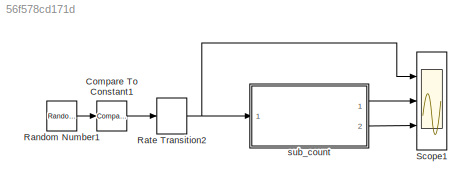
MODEL slx_56f578cd171d
KIND model
CONFIG AbsTol = auto
CONFIG FixedStep = auto
CONFIG MaxStep = auto
CONFIG MinStep = auto
CONFIG RelTol = 1e-3
CONFIG SampleTimeConstraint = Unconstrained
CONFIG Solver = ode45
CONFIG SolverMode = Auto
CONFIG SolverName = ode45
CONFIG StartTime = 0.0
CONFIG StopTime = 1000
BLOCK [Reference] Compare To Constant1  REF=simulink/Logic and Bit
Operations/Compare
To Constant
  Ports = [1, 1]
  SourceBlock = simulink/Logic and Bit\nOperations/Compare\nTo Constant
  SourceType = Compare To Constant
BLOCK [RandomNumber] Random Number1
  SampleTime = 70
BLOCK [RateTransition] Rate Transition2
  OutPortSampleTime = 1
BLOCK [Scope] Scope1
  NumInputPorts = 3
  Ports = [3]
  ScopeSpecificationString = C++SS(StrPVP('Location','[37, 79, 496, 565]'),StrPVP('Open','off'),StrPVP('ZoomMode','yonly'),MxPVP('AxesTitles',24,'struct(''axes1'',''%<SignalLabel>'',''axes2'',''%<SignalLabel>'',''axes3'',''%<SignalLabel>'')'),MxPVP('ScopeGraphics',28,'struct(''FigureColor'',''[0.501960784313725 0.501960784313725 0.501960784313725]'',''AxesColor'',''[0 0 0]'',''AxesTickColor'',''[1 1 1]'',''LineColors'',''[1 1...<+444ch>
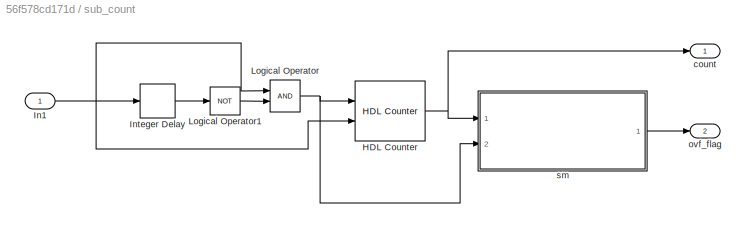
BLOCK [SubSystem] sub_count
  Ports = [1, 2]
  RequestExecContextInheritance = off
  Variant = off
BLOCK [Reference] sub_count/HDL Counter  REF=hdlsllib/HDL Operations/HDL Counter
  Ports = [2, 1]
  SourceBlock = hdlsllib/HDL Operations/HDL Counter
  SourceType = HDL Counter
BLOCK [Inport] sub_count/In1
  IconDisplay = Port number
BLOCK [Delay] sub_count/Integer Delay
  DelayLength = 1
  InputPortMap = u0
  InputProcessing = Inherited
  Ports = [1, 1]
BLOCK [Logic] sub_count/Logical Operator
  AllPortsSameDT = off
  IconShape = distinctive
  OutDataTypeStr = boolean
  Ports = [2, 1]
BLOCK [Logic] sub_count/Logical Operator1
  AllPortsSameDT = off
  IconShape = distinctive
  Operator = NOT
  OutDataTypeStr = boolean
  Ports = [1, 1]
BLOCK [Outport] sub_count/count
  IconDisplay = Port number
BLOCK [Outport] sub_count/ovf_flag
  IconDisplay = Port number
  Port = 2
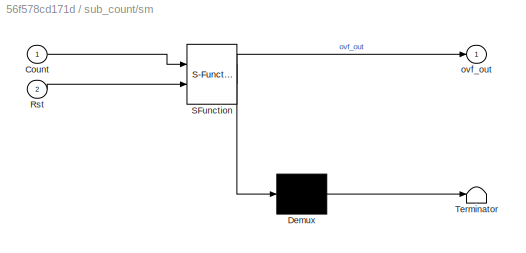
BLOCK [SubSystem] sub_count/sm
  ErrorFcn = Stateflow.Translate.translate
  PermitHierarchicalResolution = ExplicitOnly
  Ports = [2, 1]
  RequestExecContextInheritance = off
  SFBlockType = MATLAB Function
  TreatAsAtomicUnit = on
  Variant = off
BLOCK [Demux] sub_count/sm/ Demux 
  Outputs = 1
  Ports = [1, 1]
BLOCK [S-Function] sub_count/sm/ SFunction 
  EnableBusSupport = on
  FunctionName = sf_sfun
  PortCounts = [2 2]
  Ports = [2, 2]
  SFunctionDeploymentMode = off
  Tag = Stateflow S-Function mlf_statemcn 1
BLOCK [Terminator] sub_count/sm/ Terminator 
BLOCK [Inport] sub_count/sm/Count
  IconDisplay = Port number
BLOCK [Inport] sub_count/sm/Rst
  IconDisplay = Port number
  Port = 2
BLOCK [Outport] sub_count/sm/ovf_out
  IconDisplay = Port number
LINE Compare To Constant1:1 -> Rate Transition2:1
LINE Random Number1:1 -> Compare To Constant1:1
NET Rate Transition2:1 -> Scope1:1, sub_count:1
NET sub_count/HDL Counter:1 -> sub_count/count:1, sub_count/sm:1
NET sub_count/In1:1 -> sub_count/HDL Counter:2, sub_count/Integer Delay:1, sub_count/Logical Operator:1
LINE sub_count/Integer Delay:1 -> sub_count/Logical Operator1:1
LINE sub_count/Logical Operator1:1 -> sub_count/Logical Operator:2
NET sub_count/Logical Operator:1 -> sub_count/HDL Counter:1, sub_count/sm:2
LINE sub_count/sm:1 -> sub_count/ovf_flag:1
LINE sub_count:1 -> Scope1:2
LINE sub_count:2 -> Scope1:3
note: NET lines group one-source signal fan-out (src -> all destinations, sorted); 1:1 wires keep LINE
CHART sub_count/sm states=1 transitions=1
  STATE_LABEL 'eML_blk_kernel()'
  STATE_LABEL 'SCRIPT:\nfunction ovf_out  = sm(Count, Rst)\n%#codegen\n\npersistent state_reg\nif isempty(state_reg)\n\tstate_reg = fi(0, 0, 2, 0);\nend\n\nIdl = fi(0, 0, 2, 0);\nMax = fi(1, 0, 2, 0);\nOvf = fi(2, 0, 2, 0);\n\nswitch (state_reg) \n    case Idl,\n        if Count >= 255\n\t\t\tstate_reg = Max;\n\t\t\tovf_out = false;\n        else\n            state_reg = Idl;\n\t\t\tovf_out = false;\n        end\n    case Max,\n\t\tif Count == 0\n...<+264ch>'
